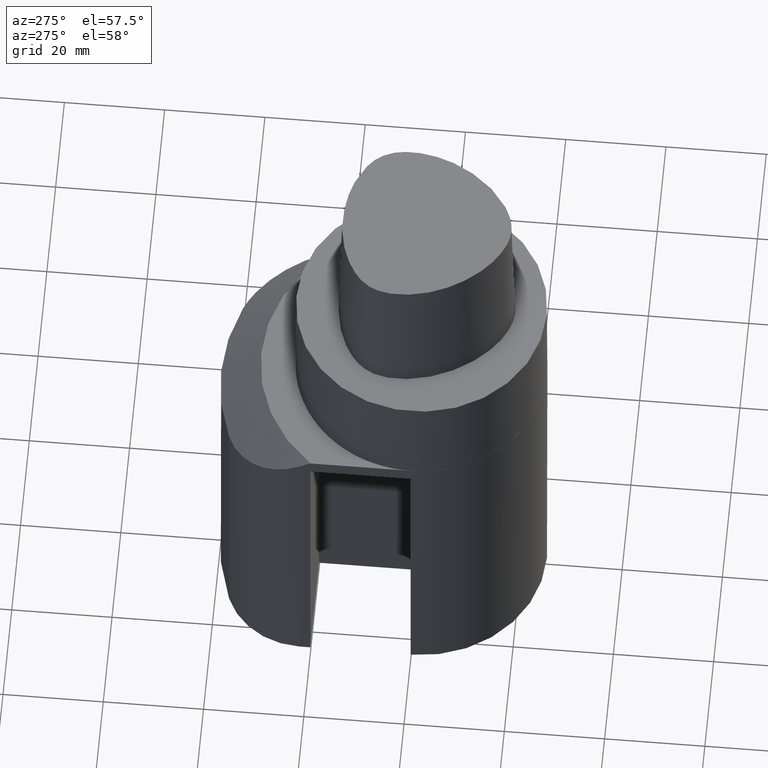
[diagram: clean part render]
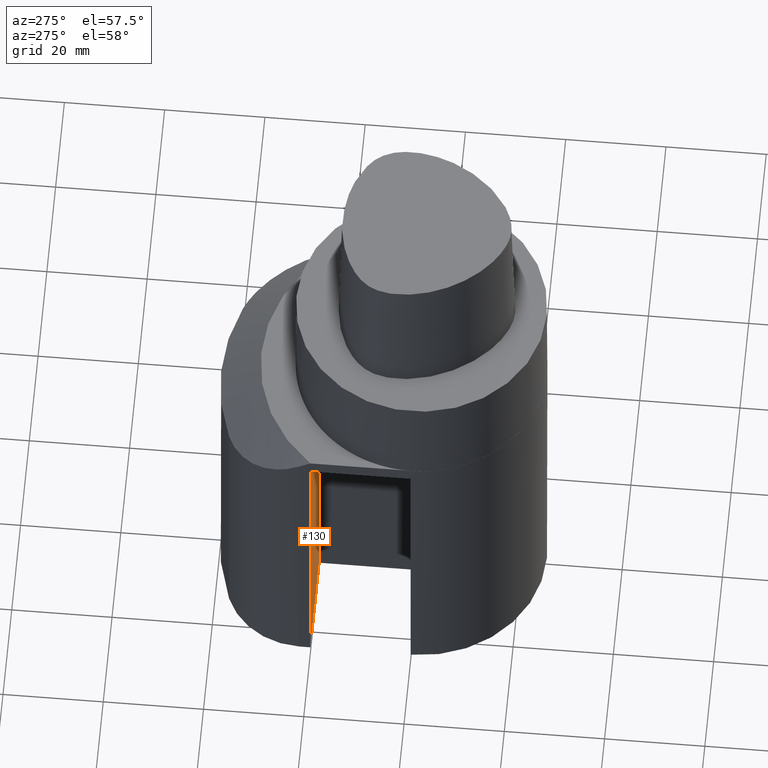
[diagram: same view with one face highlighted and labeled with its STEP entity id]
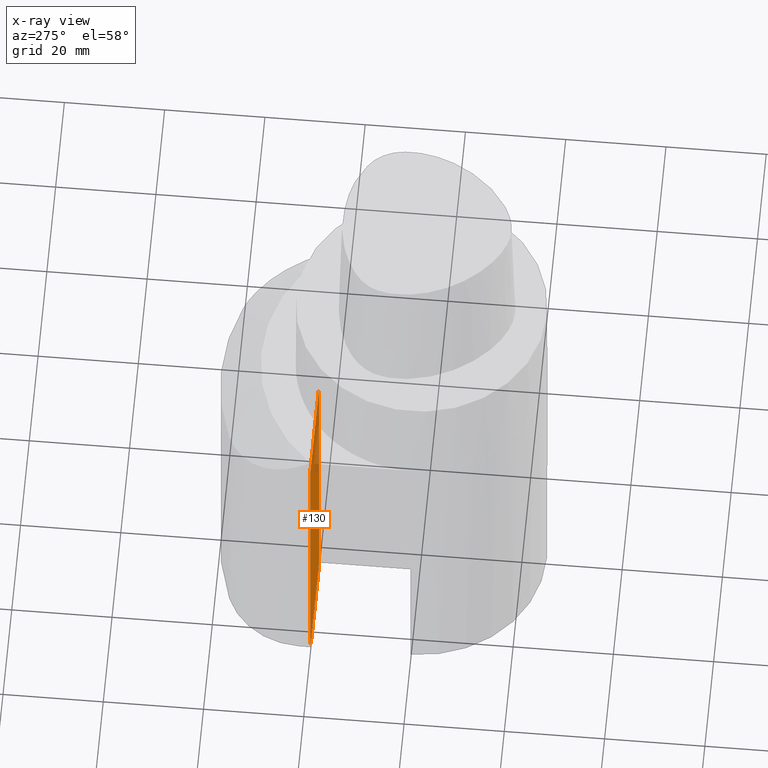
[diagram: x-ray of the same camera — body ghosted, the highlighted face saturated]
A machine part, auxiliary view. The second image highlights one B-rep face of the part: STEP entity #130.
The next image is the same camera in x-ray: the body ghosted, the highlighted face saturated — about 12% of this face is hidden behind the body in this view.
In plain terms, the highlighted planar face has unit normal (-0, 1, 0).
Its self-contained STEP definition (entity closure, byte-faithful):
#107=EDGE_CURVE('240[2]',#284,#285,#286,.T.);
#109=EDGE_CURVE('240[2]',#284,#288,#289,.T.);
#127=EDGE_CURVE('240[2]',#314,#285,#315,.T.);
#130=ADVANCED_FACE('240[2]',(#318),#319,.F.);
#145=EDGE_CURVE('240[2]',#288,#314,#340,.T.);
#284=VERTEX_POINT('',#539);
#285=VERTEX_POINT('',#540);
#286=LINE('',#541,#542);
#288=VERTEX_POINT('',#545);
#289=LINE('',#546,#547);
#314=VERTEX_POINT('',#582);
#315=LINE('',#583,#584);
#318=FACE_OUTER_BOUND('',#588,.T.);
#319=PLANE('',#589);
#340=LINE('',#628,#629);
#539=CARTESIAN_POINT('',(-4.99999999999999,19.9999999999962,-90.0000000000002));
#540=CARTESIAN_POINT('',(-5.0,19.9999999999962,-25.0000000000009));
#541=CARTESIAN_POINT('',(-4.99999999999998,19.9999999999962,-263.139999954391));
#542=VECTOR('',#1375,1.0);
#545=CARTESIAN_POINT('',(-25.0,19.9999999999962,-90.0000000000002));
#546=CARTESIAN_POINT('',(-7.49999999999999,19.9999999999962,-90.0000000000002));
#547=VECTOR('',#1376,1.0);
#582=CARTESIAN_POINT('',(-25.0,19.9999999999962,-25.0000000000009));
#583=CARTESIAN_POINT('',(-5.0,19.9999999999962,-25.0000000000009));
#584=VECTOR('',#1399,1.0);
#588=EDGE_LOOP('',(#1401,#1402,#1403,#1404));
#589=AXIS2_PLACEMENT_3D('',#1405,#1406,#1407);
#628=CARTESIAN_POINT('',(-25.0,19.9999999999962,-263.139999954391));
#629=VECTOR('',#1424,1.0);
#1375=DIRECTION('',(-6.12323399573677E-017,-1.22464679914735E-016,1.0));
#1376=DIRECTION('',(-1.0,-4.82715273076902E-033,-6.12323399573677E-017));
#1399=DIRECTION('',(1.0,4.82715273076902E-033,6.12323399573677E-017));
#1401=ORIENTED_EDGE('',*,*,#107,.T.);
#1402=ORIENTED_EDGE('',*,*,#127,.F.);
#1403=ORIENTED_EDGE('',*,*,#145,.F.);
#1404=ORIENTED_EDGE('',*,*,#109,.F.);
#1405=CARTESIAN_POINT('',(-15.0,19.9999999999962,-263.139999954391));
#1406=DIRECTION('',(-1.50949372273655E-048,1.0,1.22464679914735E-016));
#1407=DIRECTION('',(1.0,0.0,1.23259516440783E-032));
#1424=DIRECTION('',(-6.12323399573677E-017,-1.22464679914735E-016,1.0));